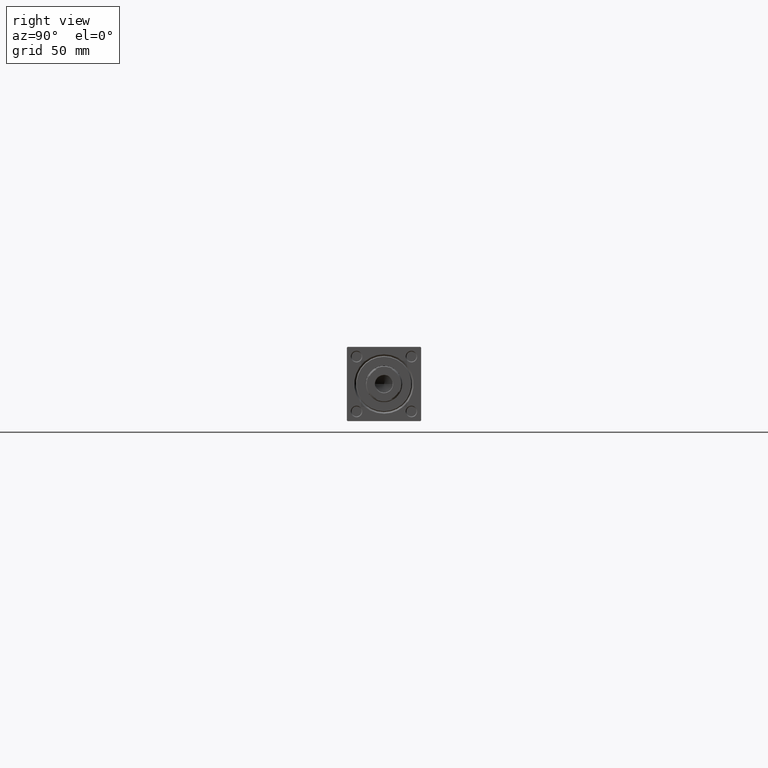
[diagram: clean part render]
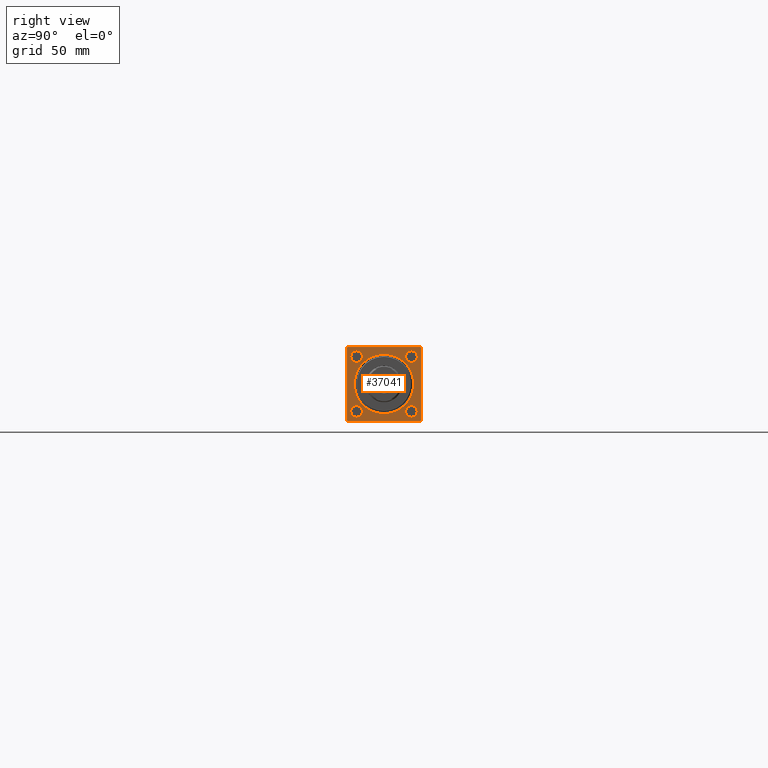
[diagram: same view with one face highlighted and labeled with its STEP entity id]
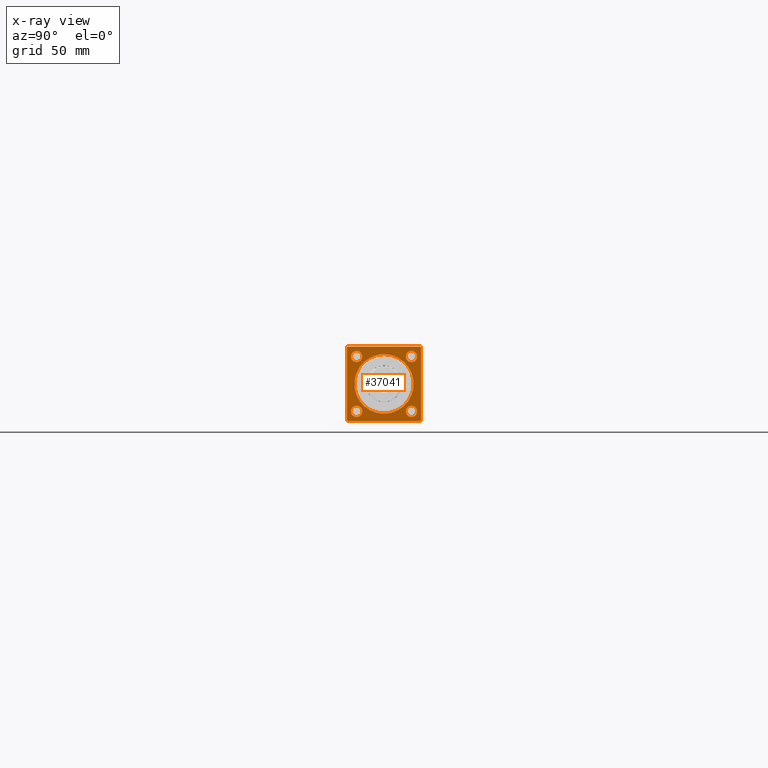
[diagram: x-ray of the same camera — body ghosted, the highlighted face saturated]
A machine part, right view. The second image highlights one B-rep face of the part: STEP entity #37041.
The next image is the same camera in x-ray: the body ghosted, the highlighted face saturated — about 0% of this face is hidden behind the body in this view.
In plain terms, the highlighted planar face has unit normal (-1, 0, 0).
Its self-contained STEP definition (entity closure, byte-faithful):
#11 = ORIENTED_EDGE ( 'NONE', *, *, #46587, .T. ) ;
#251 = DIRECTION ( 'NONE',  ( -1.000000000000000000, 0.000000000000000000, -0.000000000000000000 ) ) ;
#509 = DIRECTION ( 'NONE',  ( -0.000000000000000000, -0.7071067811865081598, -0.7071067811865867636 ) ) ;
#930 = DIRECTION ( 'NONE',  ( 0.000000000000000000, 0.000000000000000000, 1.000000000000000000 ) ) ;
#1092 = LINE ( 'NONE', #44206, #24847 ) ;
#1753 = LINE ( 'NONE', #17255, #7701 ) ;
#1869 = ORIENTED_EDGE ( 'NONE', *, *, #26428, .T. ) ;
#2127 = DIRECTION ( 'NONE',  ( 0.000000000000000000, 0.000000000000000000, 1.000000000000000000 ) ) ;
#2197 = CARTESIAN_POINT ( 'NONE',  ( 403.0000000000000000, 22.50000000000000355, -21.99999999999999645 ) ) ;
#2234 = CARTESIAN_POINT ( 'NONE',  ( 403.0000000000000000, 2.204364238465237794E-15, 18.00000000000001421 ) ) ;
#2419 = VERTEX_POINT ( 'NONE', #3202 ) ;
#2591 = ORIENTED_EDGE ( 'NONE', *, *, #19608, .T. ) ;
#3202 = CARTESIAN_POINT ( 'NONE',  ( 403.0000000000000000, -22.49999999999999645, 21.99999999999987921 ) ) ;
#3809 = LINE ( 'NONE', #19302, #27029 ) ;
#3877 = AXIS2_PLACEMENT_3D ( 'NONE', #37606, #26460, #14550 ) ;
#3943 = EDGE_CURVE ( 'NONE', #19374, #15500, #1753, .T. ) ;
#4434 = CIRCLE ( 'NONE', #39259, 3.500000000000003109 ) ;
#4784 = EDGE_CURVE ( 'NONE', #48741, #16425, #41787, .T. ) ;
#4797 = AXIS2_PLACEMENT_3D ( 'NONE', #23178, #45256, #37879 ) ;
#4845 = DIRECTION ( 'NONE',  ( 0.000000000000000000, 0.000000000000000000, 1.000000000000000000 ) ) ;
#5062 = LINE ( 'NONE', #28409, #19833 ) ;
#5253 = VECTOR ( 'NONE', #47936, 1000.000000000000000 ) ;
#5285 = ORIENTED_EDGE ( 'NONE', *, *, #22604, .T. ) ;
#5366 = VERTEX_POINT ( 'NONE', #7017 ) ;
#5489 = CARTESIAN_POINT ( 'NONE',  ( 403.0000000000000000, 16.59999999999999787, 16.60000000000000497 ) ) ;
#5937 = CARTESIAN_POINT ( 'NONE',  ( 403.0000000000000000, -16.59999999999999787, 16.59999999999999787 ) ) ;
#6233 = DIRECTION ( 'NONE',  ( -1.000000000000000000, 0.000000000000000000, -0.000000000000000000 ) ) ;
#6273 = CARTESIAN_POINT ( 'NONE',  ( 403.0000000000000000, 22.00000000000000355, 22.50000000000000355 ) ) ;
#6595 = CARTESIAN_POINT ( 'NONE',  ( 403.0000000000000000, 0.000000000000000000, -18.00000000000001421 ) ) ;
#6663 = CARTESIAN_POINT ( 'NONE',  ( 403.0000000000000000, -16.60000000000000497, -13.10000000000000142 ) ) ;
#6673 = EDGE_LOOP ( 'NONE', ( #40290, #22840 ) ) ;
#7017 = CARTESIAN_POINT ( 'NONE',  ( 403.0000000000000000, -16.59999999999999787, 20.10000000000000142 ) ) ;
#7201 = EDGE_CURVE ( 'NONE', #2419, #19374, #11211, .T. ) ;
#7449 = CARTESIAN_POINT ( 'NONE',  ( 403.0000000000000000, -16.60000000000000497, -16.60000000000000497 ) ) ;
#7701 = VECTOR ( 'NONE', #32702, 1000.000000000000000 ) ;
#8057 = CARTESIAN_POINT ( 'NONE',  ( 403.0000000000000000, -16.60000000000000497, -16.60000000000000497 ) ) ;
#8433 = EDGE_LOOP ( 'NONE', ( #11, #32066 ) ) ;
#8493 = ORIENTED_EDGE ( 'NONE', *, *, #39138, .T. ) ;
#8903 = DIRECTION ( 'NONE',  ( 0.000000000000000000, 0.000000000000000000, -1.000000000000000000 ) ) ;
#9168 = AXIS2_PLACEMENT_3D ( 'NONE', #43757, #28051, #28301 ) ;
#10403 = AXIS2_PLACEMENT_3D ( 'NONE', #38234, #18976, #30643 ) ;
#10984 = CARTESIAN_POINT ( 'NONE',  ( 403.0000000000000000, 16.59999999999999787, -20.10000000000000853 ) ) ;
#11013 = DIRECTION ( 'NONE',  ( -1.000000000000000000, 0.000000000000000000, -0.000000000000000000 ) ) ;
#11075 = DIRECTION ( 'NONE',  ( -0.000000000000000000, 0.7071067811865474617, 0.7071067811865474617 ) ) ;
#11211 = LINE ( 'NONE', #27441, #49137 ) ;
#11501 = ORIENTED_EDGE ( 'NONE', *, *, #23333, .T. ) ;
#11808 = CARTESIAN_POINT ( 'NONE',  ( 403.0000000000000000, 22.00000000000000355, -22.49999999999999645 ) ) ;
#12435 = DIRECTION ( 'NONE',  ( 0.000000000000000000, 0.000000000000000000, 1.000000000000000000 ) ) ;
#12778 = ORIENTED_EDGE ( 'NONE', *, *, #32068, .F. ) ;
#12871 = EDGE_CURVE ( 'NONE', #5366, #25145, #35567, .T. ) ;
#12952 = CARTESIAN_POINT ( 'NONE',  ( 403.0000000000000000, 22.50000000000000355, 22.50000000000000355 ) ) ;
#14191 = ORIENTED_EDGE ( 'NONE', *, *, #32410, .F. ) ;
#14354 = CARTESIAN_POINT ( 'NONE',  ( 403.0000000000000000, 16.59999999999999787, -13.10000000000000142 ) ) ;
#14550 = DIRECTION ( 'NONE',  ( 0.000000000000000000, 0.000000000000000000, 1.000000000000000000 ) ) ;
#15319 = FACE_OUTER_BOUND ( 'NONE', #43762, .T. ) ;
#15500 = VERTEX_POINT ( 'NONE', #26120 ) ;
#16236 = ORIENTED_EDGE ( 'NONE', *, *, #17862, .T. ) ;
#16425 = VERTEX_POINT ( 'NONE', #6595 ) ;
#16468 = VECTOR ( 'NONE', #11075, 1000.000000000000114 ) ;
#16677 = CIRCLE ( 'NONE', #42595, 3.500000000000003109 ) ;
#16774 = VERTEX_POINT ( 'NONE', #14354 ) ;
#17070 = VERTEX_POINT ( 'NONE', #6663 ) ;
#17255 = CARTESIAN_POINT ( 'NONE',  ( 403.0000000000000000, -21.99999999999993960, -22.50000000000000000 ) ) ;
#17520 = DIRECTION ( 'NONE',  ( 0.000000000000000000, 0.000000000000000000, 1.000000000000000000 ) ) ;
#17862 = EDGE_CURVE ( 'NONE', #29085, #2419, #3809, .T. ) ;
#18039 = VERTEX_POINT ( 'NONE', #24106 ) ;
#18976 = DIRECTION ( 'NONE',  ( -1.000000000000000000, 0.000000000000000000, -0.000000000000000000 ) ) ;
#19116 = FACE_BOUND ( 'NONE', #22426, .T. ) ;
#19302 = CARTESIAN_POINT ( 'NONE',  ( 403.0000000000000000, -22.49999999999999645, 21.99999999999987921 ) ) ;
#19374 = VERTEX_POINT ( 'NONE', #33638 ) ;
#19608 = EDGE_CURVE ( 'NONE', #29718, #16774, #35895, .T. ) ;
#19833 = VECTOR ( 'NONE', #24846, 1000.000000000000114 ) ;
#20146 = EDGE_CURVE ( 'NONE', #45925, #43258, #30344, .T. ) ;
#20814 = CARTESIAN_POINT ( 'NONE',  ( 403.0000000000000000, 16.59999999999999787, 20.10000000000000853 ) ) ;
#22426 = EDGE_LOOP ( 'NONE', ( #26216, #27273 ) ) ;
#22604 = EDGE_CURVE ( 'NONE', #17070, #48987, #4434, .T. ) ;
#22840 = ORIENTED_EDGE ( 'NONE', *, *, #4784, .T. ) ;
#23178 = CARTESIAN_POINT ( 'NONE',  ( 403.0000000000000000, 0.000000000000000000, 0.000000000000000000 ) ) ;
#23333 = EDGE_CURVE ( 'NONE', #18039, #26003, #5062, .T. ) ;
#23415 = AXIS2_PLACEMENT_3D ( 'NONE', #5937, #36628, #2127 ) ;
#24106 = CARTESIAN_POINT ( 'NONE',  ( 403.0000000000000000, 22.50000000000000355, 22.00000000000000355 ) ) ;
#24165 = CARTESIAN_POINT ( 'NONE',  ( 403.0000000000000000, -21.99999999999992539, 22.49999999999999289 ) ) ;
#24586 = EDGE_CURVE ( 'NONE', #26003, #29085, #32458, .T. ) ;
#24846 = DIRECTION ( 'NONE',  ( 0.000000000000000000, -0.7071067811865474617, 0.7071067811865474617 ) ) ;
#24847 = VECTOR ( 'NONE', #32035, 1000.000000000000000 ) ;
#24881 = LINE ( 'NONE', #43654, #31339 ) ;
#25125 = CARTESIAN_POINT ( 'NONE',  ( 403.0000000000000000, 16.59999999999999787, -16.60000000000000497 ) ) ;
#25145 = VERTEX_POINT ( 'NONE', #28497 ) ;
#25978 = FACE_BOUND ( 'NONE', #6673, .T. ) ;
#26003 = VERTEX_POINT ( 'NONE', #6273 ) ;
#26120 = CARTESIAN_POINT ( 'NONE',  ( 403.0000000000000000, -21.99999999999992539, -22.50000000000000000 ) ) ;
#26216 = ORIENTED_EDGE ( 'NONE', *, *, #44324, .T. ) ;
#26240 = DIRECTION ( 'NONE',  ( 0.000000000000000000, 0.000000000000000000, 1.000000000000000000 ) ) ;
#26428 = EDGE_CURVE ( 'NONE', #48987, #17070, #16677, .T. ) ;
#26460 = DIRECTION ( 'NONE',  ( -1.000000000000000000, 0.000000000000000000, -0.000000000000000000 ) ) ;
#27029 = VECTOR ( 'NONE', #509, 1000.000000000000000 ) ;
#27170 = CIRCLE ( 'NONE', #41759, 3.500000000000003109 ) ;
#27273 = ORIENTED_EDGE ( 'NONE', *, *, #35389, .T. ) ;
#27441 = CARTESIAN_POINT ( 'NONE',  ( 403.0000000000000000, -22.49999999999999645, 22.49999999999999289 ) ) ;
#27957 = ORIENTED_EDGE ( 'NONE', *, *, #20146, .T. ) ;
#28051 = DIRECTION ( 'NONE',  ( -1.000000000000000000, 0.000000000000000000, -0.000000000000000000 ) ) ;
#28301 = DIRECTION ( 'NONE',  ( 0.000000000000000000, 0.000000000000000000, 1.000000000000000000 ) ) ;
#28409 = CARTESIAN_POINT ( 'NONE',  ( 403.0000000000000000, 22.00000000000000355, 22.50000000000000355 ) ) ;
#28497 = CARTESIAN_POINT ( 'NONE',  ( 403.0000000000000000, -16.59999999999999787, 13.09999999999999432 ) ) ;
#29085 = VERTEX_POINT ( 'NONE', #24165 ) ;
#29718 = VERTEX_POINT ( 'NONE', #10984 ) ;
#29928 = CIRCLE ( 'NONE', #36396, 3.500000000000003109 ) ;
#29944 = CARTESIAN_POINT ( 'NONE',  ( 403.0000000000000000, 22.50000000000000355, -21.99999999999998224 ) ) ;
#30344 = LINE ( 'NONE', #2197, #16468 ) ;
#30418 = AXIS2_PLACEMENT_3D ( 'NONE', #47196, #39332, #4845 ) ;
#30643 = DIRECTION ( 'NONE',  ( 0.000000000000000000, 0.000000000000000000, 1.000000000000000000 ) ) ;
#31133 = CARTESIAN_POINT ( 'NONE',  ( 403.0000000000000000, -16.60000000000000497, -20.10000000000000853 ) ) ;
#31339 = VECTOR ( 'NONE', #8903, 1000.000000000000000 ) ;
#32035 = DIRECTION ( 'NONE',  ( 0.000000000000000000, -1.000000000000000000, -7.709882115452476934E-17 ) ) ;
#32066 = ORIENTED_EDGE ( 'NONE', *, *, #12871, .T. ) ;
#32068 = EDGE_CURVE ( 'NONE', #45925, #15500, #1092, .T. ) ;
#32410 = EDGE_CURVE ( 'NONE', #18039, #43258, #24881, .T. ) ;
#32458 = LINE ( 'NONE', #12952, #5253 ) ;
#32702 = DIRECTION ( 'NONE',  ( 0.000000000000000000, 0.7071067811865426878, -0.7071067811865524577 ) ) ;
#33638 = CARTESIAN_POINT ( 'NONE',  ( 403.0000000000000000, -22.49999999999999645, -21.99999999999992184 ) ) ;
#34076 = FACE_BOUND ( 'NONE', #47893, .T. ) ;
#35389 = EDGE_CURVE ( 'NONE', #38477, #44245, #41975, .T. ) ;
#35567 = CIRCLE ( 'NONE', #23415, 3.500000000000003109 ) ;
#35895 = CIRCLE ( 'NONE', #9168, 3.500000000000003109 ) ;
#36268 = EDGE_CURVE ( 'NONE', #16425, #48741, #39588, .T. ) ;
#36396 = AXIS2_PLACEMENT_3D ( 'NONE', #25125, #40583, #17520 ) ;
#36479 = ORIENTED_EDGE ( 'NONE', *, *, #24586, .T. ) ;
#36628 = DIRECTION ( 'NONE',  ( -1.000000000000000000, 0.000000000000000000, -0.000000000000000000 ) ) ;
#37041 = ADVANCED_FACE ( 'NONE', ( #19116, #38626, #49302, #34076, #25978, #15319 ), #41442, .F. ) ;
#37606 = CARTESIAN_POINT ( 'NONE',  ( 403.0000000000000000, 16.59999999999999787, 16.60000000000000497 ) ) ;
#37651 = AXIS2_PLACEMENT_3D ( 'NONE', #43120, #251, #12435 ) ;
#37879 = DIRECTION ( 'NONE',  ( -0.000000000000000000, 0.000000000000000000, 1.000000000000000000 ) ) ;
#38234 = CARTESIAN_POINT ( 'NONE',  ( 403.0000000000000000, 0.000000000000000000, 0.000000000000000000 ) ) ;
#38477 = VERTEX_POINT ( 'NONE', #20814 ) ;
#38626 = FACE_BOUND ( 'NONE', #8433, .T. ) ;
#39138 = EDGE_CURVE ( 'NONE', #16774, #29718, #29928, .T. ) ;
#39259 = AXIS2_PLACEMENT_3D ( 'NONE', #8057, #42809, #930 ) ;
#39332 = DIRECTION ( 'NONE',  ( -1.000000000000000000, 0.000000000000000000, -0.000000000000000000 ) ) ;
#39588 = CIRCLE ( 'NONE', #10403, 18.00000000000001421 ) ;
#40075 = CIRCLE ( 'NONE', #37651, 3.500000000000003109 ) ;
#40290 = ORIENTED_EDGE ( 'NONE', *, *, #36268, .T. ) ;
#40583 = DIRECTION ( 'NONE',  ( -1.000000000000000000, 0.000000000000000000, -0.000000000000000000 ) ) ;
#41442 = PLANE ( 'NONE',  #4797 ) ;
#41759 = AXIS2_PLACEMENT_3D ( 'NONE', #5489, #6233, #48835 ) ;
#41787 = CIRCLE ( 'NONE', #30418, 18.00000000000001421 ) ;
#41975 = CIRCLE ( 'NONE', #3877, 3.500000000000003109 ) ;
#42046 = CARTESIAN_POINT ( 'NONE',  ( 403.0000000000000000, 16.59999999999999787, 13.10000000000000142 ) ) ;
#42595 = AXIS2_PLACEMENT_3D ( 'NONE', #7449, #11013, #26240 ) ;
#42809 = DIRECTION ( 'NONE',  ( -1.000000000000000000, 0.000000000000000000, -0.000000000000000000 ) ) ;
#42902 = DIRECTION ( 'NONE',  ( 0.000000000000000000, 0.000000000000000000, -1.000000000000000000 ) ) ;
#43120 = CARTESIAN_POINT ( 'NONE',  ( 403.0000000000000000, -16.59999999999999787, 16.59999999999999787 ) ) ;
#43258 = VERTEX_POINT ( 'NONE', #29944 ) ;
#43654 = CARTESIAN_POINT ( 'NONE',  ( 403.0000000000000000, 22.50000000000000355, 22.50000000000000355 ) ) ;
#43757 = CARTESIAN_POINT ( 'NONE',  ( 403.0000000000000000, 16.59999999999999787, -16.60000000000000497 ) ) ;
#43762 = EDGE_LOOP ( 'NONE', ( #48508, #46048, #12778, #27957, #14191, #11501, #36479, #16236 ) ) ;
#44206 = CARTESIAN_POINT ( 'NONE',  ( 403.0000000000000000, 22.50000000000000355, -22.49999999999999645 ) ) ;
#44245 = VERTEX_POINT ( 'NONE', #42046 ) ;
#44324 = EDGE_CURVE ( 'NONE', #44245, #38477, #27170, .T. ) ;
#45256 = DIRECTION ( 'NONE',  ( -1.000000000000000000, 0.000000000000000000, -0.000000000000000000 ) ) ;
#45471 = EDGE_LOOP ( 'NONE', ( #1869, #5285 ) ) ;
#45925 = VERTEX_POINT ( 'NONE', #11808 ) ;
#46048 = ORIENTED_EDGE ( 'NONE', *, *, #3943, .T. ) ;
#46587 = EDGE_CURVE ( 'NONE', #25145, #5366, #40075, .T. ) ;
#47196 = CARTESIAN_POINT ( 'NONE',  ( 403.0000000000000000, 0.000000000000000000, 0.000000000000000000 ) ) ;
#47893 = EDGE_LOOP ( 'NONE', ( #2591, #8493 ) ) ;
#47936 = DIRECTION ( 'NONE',  ( 0.000000000000000000, -1.000000000000000000, -2.312964634635742957E-16 ) ) ;
#48508 = ORIENTED_EDGE ( 'NONE', *, *, #7201, .T. ) ;
#48741 = VERTEX_POINT ( 'NONE', #2234 ) ;
#48835 = DIRECTION ( 'NONE',  ( 0.000000000000000000, 0.000000000000000000, 1.000000000000000000 ) ) ;
#48987 = VERTEX_POINT ( 'NONE', #31133 ) ;
#49137 = VECTOR ( 'NONE', #42902, 1000.000000000000000 ) ;
#49302 = FACE_BOUND ( 'NONE', #45471, .T. ) ;